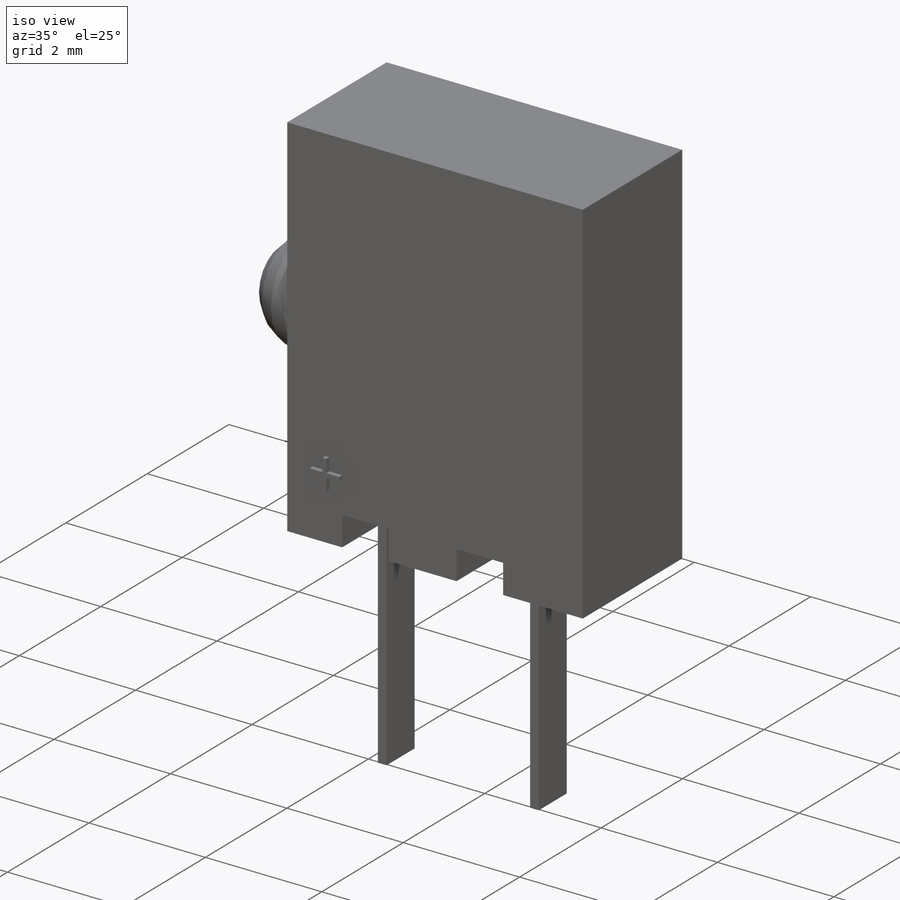
[diagram: iso view]
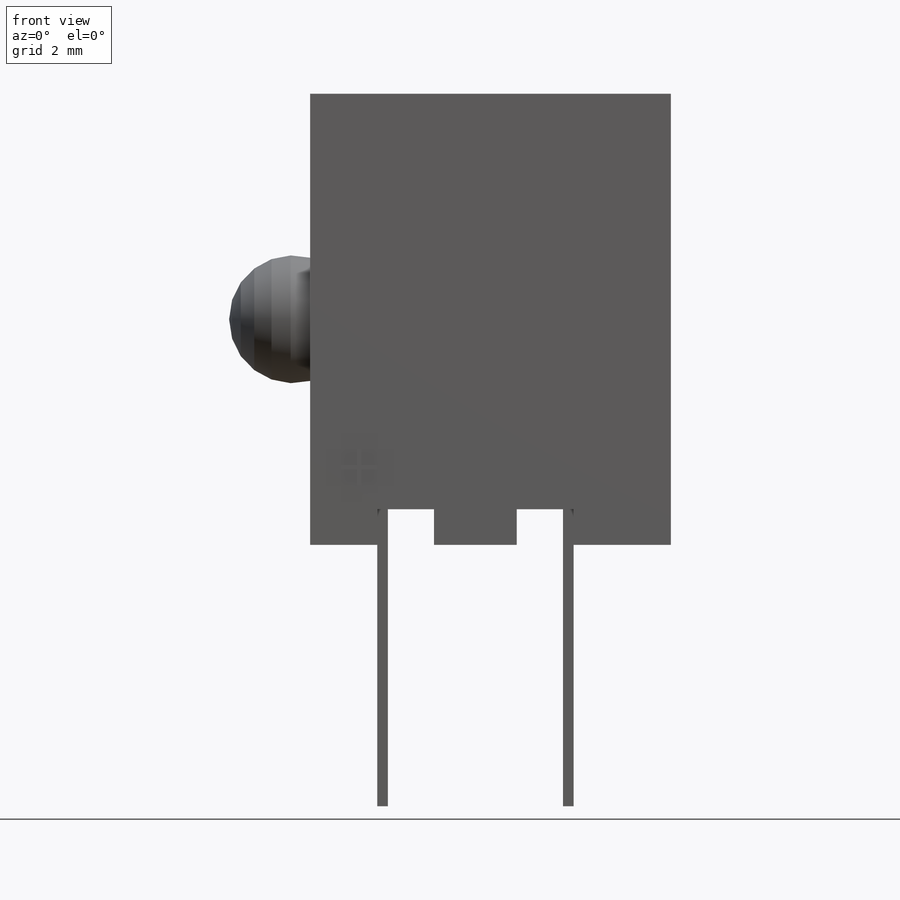
[diagram: front view]
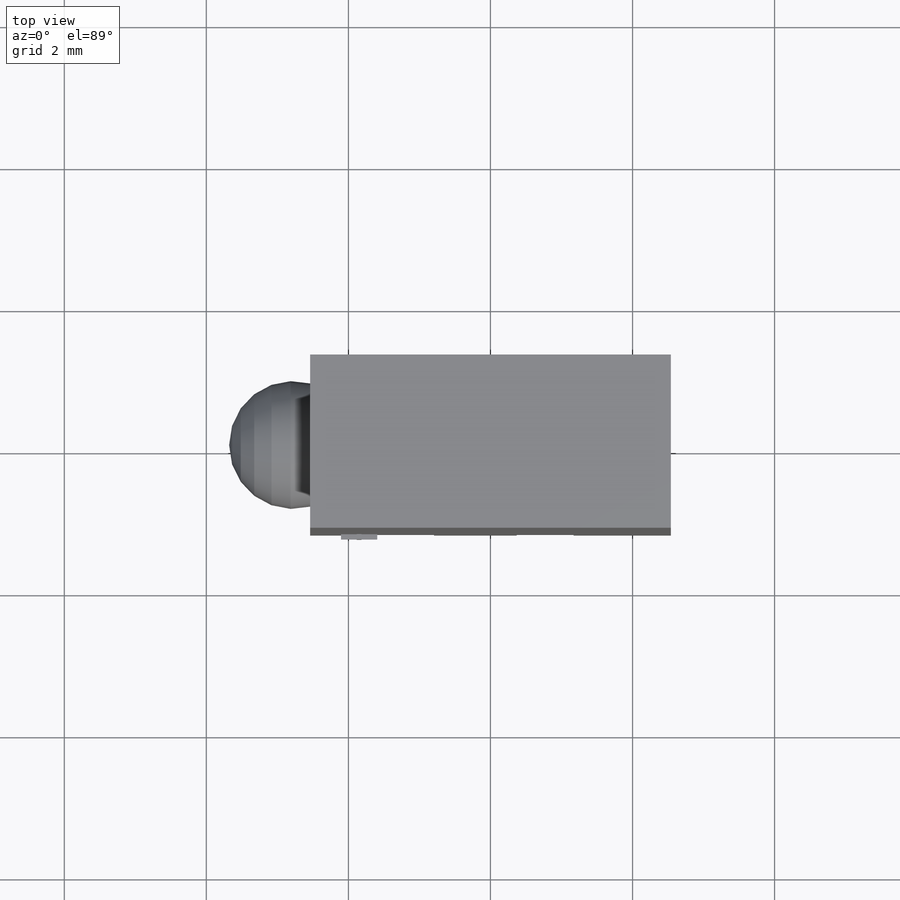
[diagram: top view]
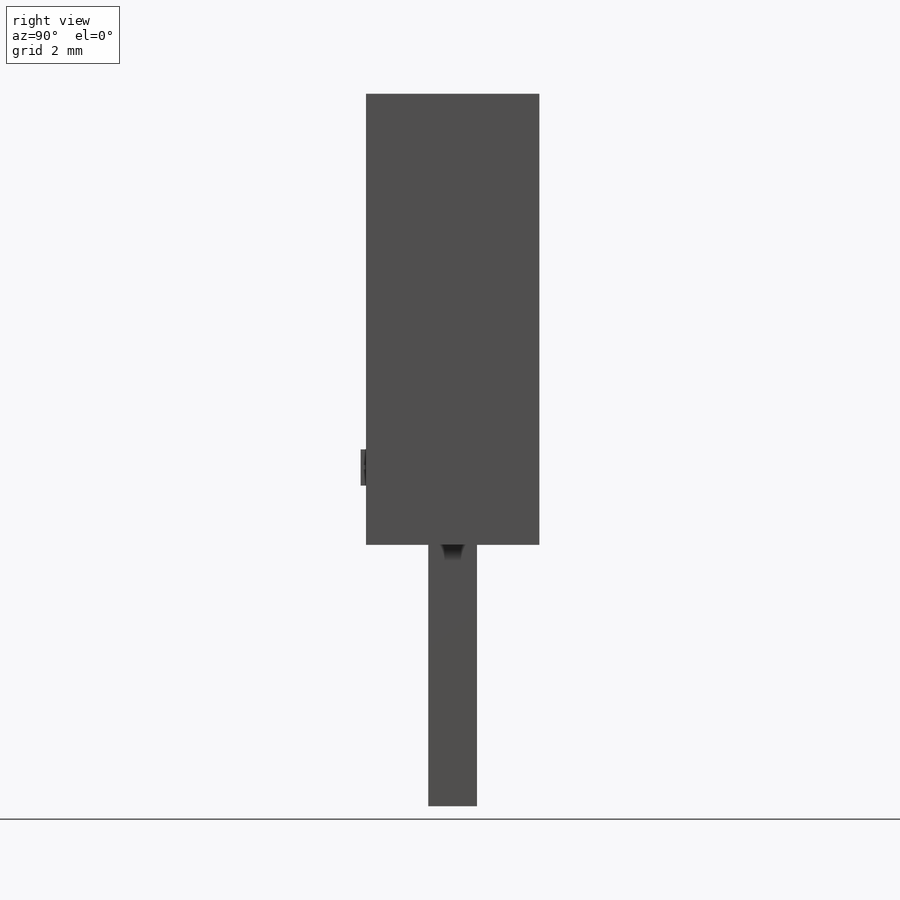
[diagram: right view]
SOLIDWORKS PART (.sldprt)
format: sldprt  version: not decoded by parser v0  size: 692,736 bytes
history: native  units: mm
features: sketch x6, extrude x3, cut_extrude x2, material x1, revolve x1 (+12 scaffold rows collapsed)
feature tree (25):
  scaffold x12  (default folders/planes/origin — collapsed)
  material  "Material <not specified>"
  sketch  "Sketch1"  dims[c1.D4=1.8mm c1.D9=1.8mm c1.D1=5.08mm c1.D2=6.35mm c1.D3=1.14mm c1.D5=3.68mm c1.D6=0.15mm c1.D7=2.54mm c1.D8=1.14mm c2.D3=2.69mm c2.D4=0.5mm c2.D5=0.75mm c2.D6=1.15mm]
  extrude  "Extrude1"  Depth=2.44mm
  revolve  "Revolve1"  [1 undecoded]
  sketch  "Sketch1<3>"  dims[D1=360.0deg]
  sketch  "Sketch2"  dims[D1=0.7mm]
  extrude  "Extrude3"  Depth=0.075mm
  sketch  "Sketch3"  dims[c1.D1=0.15mm c1.D2=0.686mm c1.D3=2.54mm c1.D4=1.63mm c2.D3=1.02mm c2.D4=2.54mm c2.D5=0.8mm]
  cut_extrude  "Cut-Extrude1"  Depth=0.5mm
  extrude  "Extrude4"  [1 undecoded]
  sketch  "Sketch3<3>"  dims[D1=3.68mm]
  sketch  "Sketch4"
  cut_extrude  "Cut-Extrude2"  Depth=0.01mm
decode coverage: 9 of 12 modeling features carry decoded parameters
note: 2 parameter values undecoded
note: suppression state not decoded; provenance and decode notes live in map.json
